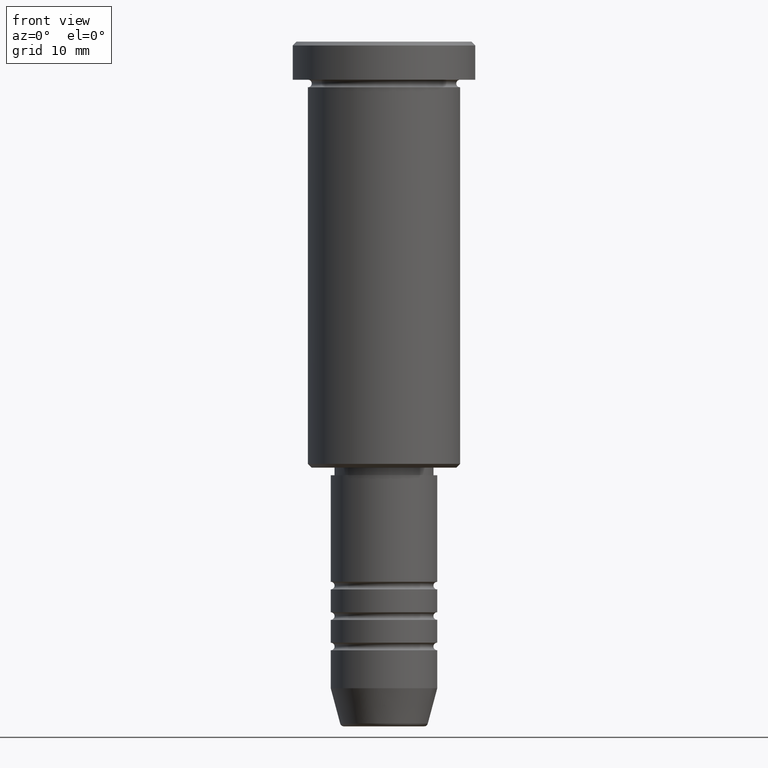
[diagram: clean part render]
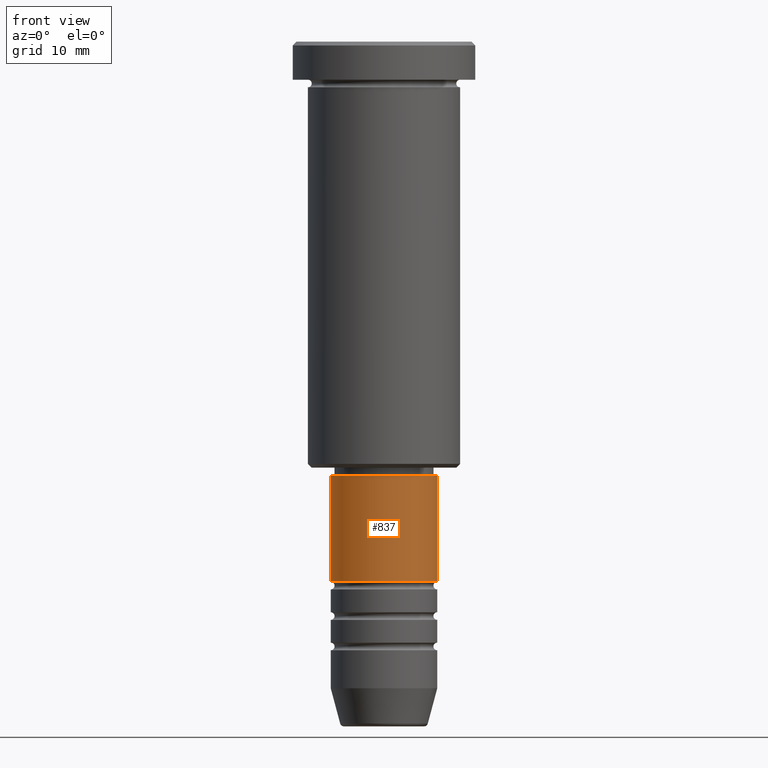
[diagram: same view with one face highlighted and labeled with its STEP entity id]
A machine part, front view. The second image highlights one B-rep face of the part: STEP entity #837.
In plain terms, the highlighted cylindrical surface (partial cylindrical patch) has radius 7 mm, axis along (-0, -0, 1).
Its self-contained STEP definition (entity closure, byte-faithful):
#116 = EDGE_CURVE ( 'NONE', #1124, #189, #973, .T. ) ;
#136 = DIRECTION ( 'NONE',  ( -0.000000000000000000, -0.000000000000000000, 1.000000000000000000 ) ) ;
#185 = LINE ( 'NONE', #812, #300 ) ;
#189 = VERTEX_POINT ( 'NONE', #425 ) ;
#223 = CARTESIAN_POINT ( 'NONE',  ( 0.000000000000000000, 0.000000000000000000, -57.00000000000000711 ) ) ;
#233 = ORIENTED_EDGE ( 'NONE', *, *, #1118, .T. ) ;
#239 = CARTESIAN_POINT ( 'NONE',  ( 0.000000000000000000, 0.000000000000000000, -70.99999999999998579 ) ) ;
#249 = CIRCLE ( 'NONE', #1005, 7.000000000000000888 ) ;
#300 = VECTOR ( 'NONE', #345, 1000.000000000000000 ) ;
#316 = VERTEX_POINT ( 'NONE', #362 ) ;
#345 = DIRECTION ( 'NONE',  ( -0.000000000000000000, -0.000000000000000000, 1.000000000000000000 ) ) ;
#347 = DIRECTION ( 'NONE',  ( 1.000000000000000000, 0.000000000000000000, 0.000000000000000000 ) ) ;
#353 = EDGE_LOOP ( 'NONE', ( #855, #233, #784, #1017 ) ) ;
#362 = CARTESIAN_POINT ( 'NONE',  ( 7.000000000000000888, 0.000000000000000000, -57.00000000000000711 ) ) ;
#364 = EDGE_CURVE ( 'NONE', #655, #316, #185, .T. ) ;
#409 = DIRECTION ( 'NONE',  ( 1.000000000000000000, 0.000000000000000000, 0.000000000000000000 ) ) ;
#425 = CARTESIAN_POINT ( 'NONE',  ( -7.000000000000000888, 8.572527594031474176E-16, -57.00000000000000711 ) ) ;
#442 = FACE_OUTER_BOUND ( 'NONE', #353, .T. ) ;
#445 = DIRECTION ( 'NONE',  ( -0.000000000000000000, -0.000000000000000000, 1.000000000000000000 ) ) ;
#480 = CIRCLE ( 'NONE', #1026, 7.000000000000000888 ) ;
#494 = DIRECTION ( 'NONE',  ( 1.000000000000000000, 0.000000000000000000, 0.000000000000000000 ) ) ;
#554 = AXIS2_PLACEMENT_3D ( 'NONE', #903, #445, #347 ) ;
#655 = VERTEX_POINT ( 'NONE', #1140 ) ;
#660 = VECTOR ( 'NONE', #867, 1000.000000000000000 ) ;
#710 = EDGE_CURVE ( 'NONE', #189, #316, #249, .T. ) ;
#769 = CARTESIAN_POINT ( 'NONE',  ( -7.000000000000000888, 8.572527594031474176E-16, 0.000000000000000000 ) ) ;
#784 = ORIENTED_EDGE ( 'NONE', *, *, #364, .T. ) ;
#812 = CARTESIAN_POINT ( 'NONE',  ( 7.000000000000000888, 0.000000000000000000, 0.000000000000000000 ) ) ;
#837 = ADVANCED_FACE ( 'NONE', ( #442 ), #1157, .T. ) ;
#855 = ORIENTED_EDGE ( 'NONE', *, *, #116, .F. ) ;
#867 = DIRECTION ( 'NONE',  ( -0.000000000000000000, -0.000000000000000000, 1.000000000000000000 ) ) ;
#903 = CARTESIAN_POINT ( 'NONE',  ( 0.000000000000000000, 0.000000000000000000, 0.000000000000000000 ) ) ;
#946 = DIRECTION ( 'NONE',  ( -0.000000000000000000, -0.000000000000000000, 1.000000000000000000 ) ) ;
#962 = CARTESIAN_POINT ( 'NONE',  ( -7.000000000000000888, 8.572527594031474176E-16, -70.99999999999998579 ) ) ;
#973 = LINE ( 'NONE', #769, #660 ) ;
#1005 = AXIS2_PLACEMENT_3D ( 'NONE', #223, #946, #494 ) ;
#1017 = ORIENTED_EDGE ( 'NONE', *, *, #710, .F. ) ;
#1026 = AXIS2_PLACEMENT_3D ( 'NONE', #239, #136, #409 ) ;
#1118 = EDGE_CURVE ( 'NONE', #1124, #655, #480, .T. ) ;
#1124 = VERTEX_POINT ( 'NONE', #962 ) ;
#1140 = CARTESIAN_POINT ( 'NONE',  ( 7.000000000000000888, 0.000000000000000000, -70.99999999999998579 ) ) ;
#1157 = CYLINDRICAL_SURFACE ( 'NONE', #554, 7.000000000000000888 ) ;